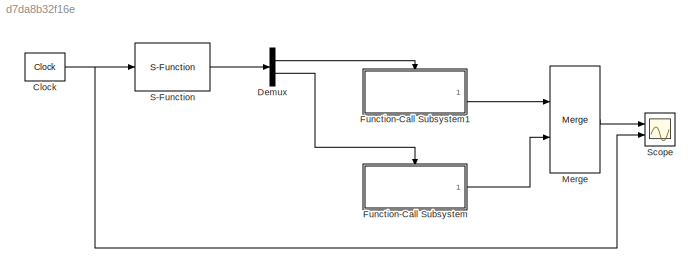
MODEL slx_d7da8b32f16e
KIND model
BLOCK [Reference] Clock  REF=simulink_extras/Flip Flops/Clock
  Ports = [0, 1]
  SourceBlock = simulink_extras/Flip Flops/Clock
  SourceType = Digital clock
  period = 2
BLOCK [Demux] Demux
  DisplayOption = bar
  Outputs = 2
  Ports = [1, 2]
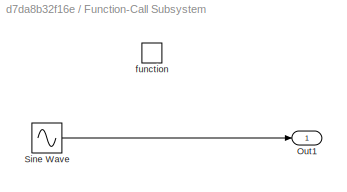
BLOCK [SubSystem] Function-Call Subsystem
  FunctionWithSeparateData = off
  MaskHideContents = off
  MinAlgLoopOccurrences = off
  Opaque = off
  Ports = [0, 1, 0, 1]
  PropExecContextOutsideSubsystem = off
  RTWSystemCode = Auto
  RequestExecContextInheritance = off
  TreatAsAtomicUnit = on
BLOCK [Outport] Function-Call Subsystem/Out1
  IconDisplay = Port number
BLOCK [Sin] Function-Call Subsystem/Sine Wave
  Ports = [0, 1]
BLOCK [TriggerPort] Function-Call Subsystem/function
  Ports = []
  StatesWhenEnabling = held
  TriggerType = function-call
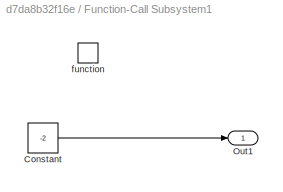
BLOCK [SubSystem] Function-Call Subsystem1
  FunctionWithSeparateData = off
  MaskHideContents = off
  MinAlgLoopOccurrences = off
  Opaque = off
  Ports = [0, 1, 0, 1]
  PropExecContextOutsideSubsystem = off
  RTWSystemCode = Auto
  RequestExecContextInheritance = off
  TreatAsAtomicUnit = on
BLOCK [Constant] Function-Call Subsystem1/Constant
  Value = -2
BLOCK [Outport] Function-Call Subsystem1/Out1
  IconDisplay = Port number
BLOCK [TriggerPort] Function-Call Subsystem1/function
  Ports = []
  StatesWhenEnabling = held
  TriggerType = function-call
BLOCK [Merge] Merge
  Ports = [2, 1]
BLOCK [S-Function] S-Function
  EnableBusSupport = off
  FunctionName = sfun_fcncall
  Ports = [1, 1]
BLOCK [Scope] Scope
  DataFormat = StructureWithTime
  Floating = off
  NumInputPorts = 2
  Ports = [2]
  SampleTime = 0
  ShowLegends = off
  YMax = 5~5
  YMin = -5~-5
NET Clock:1 -> S-Function:1, Scope:2
LINE Demux:1 -> Function-Call Subsystem1:trigger
LINE Demux:2 -> Function-Call Subsystem:trigger
LINE Function-Call Subsystem/Sine Wave:1 -> Function-Call Subsystem/Out1:1
LINE Function-Call Subsystem1/Constant:1 -> Function-Call Subsystem1/Out1:1
LINE Function-Call Subsystem1:1 -> Merge:1
LINE Function-Call Subsystem:1 -> Merge:2
LINE Merge:1 -> Scope:1
LINE S-Function:1 -> Demux:1
note: NET lines group one-source signal fan-out (src -> all destinations, sorted); 1:1 wires keep LINE
